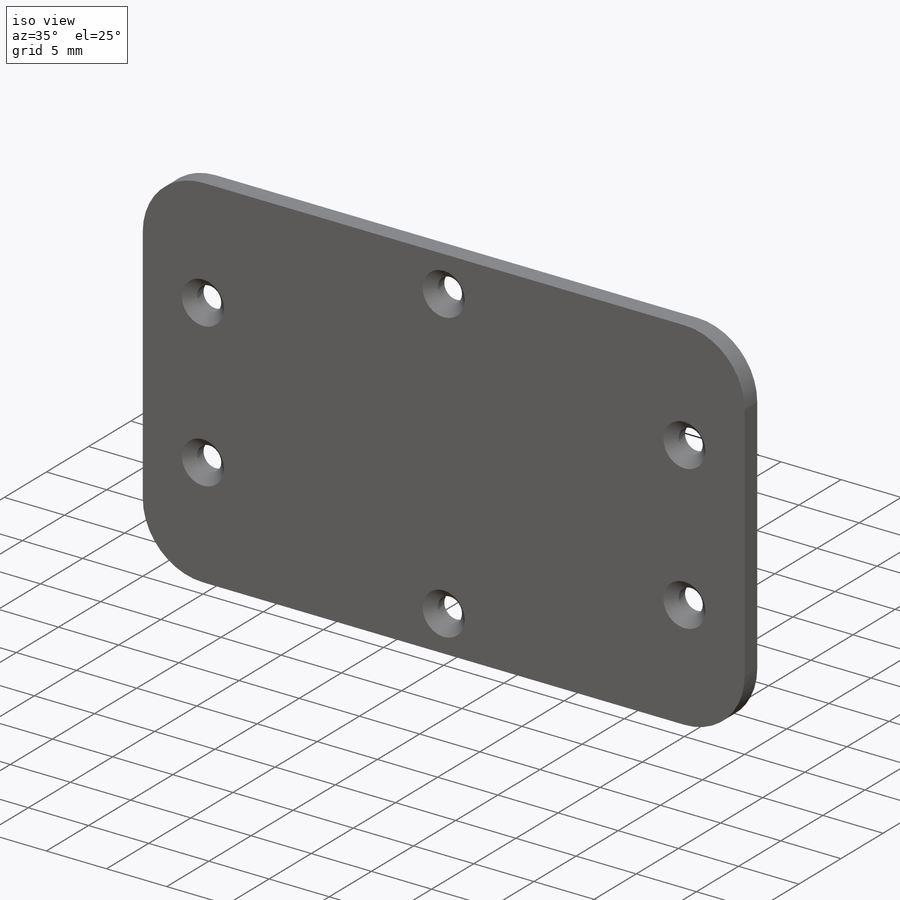
[diagram: iso view]
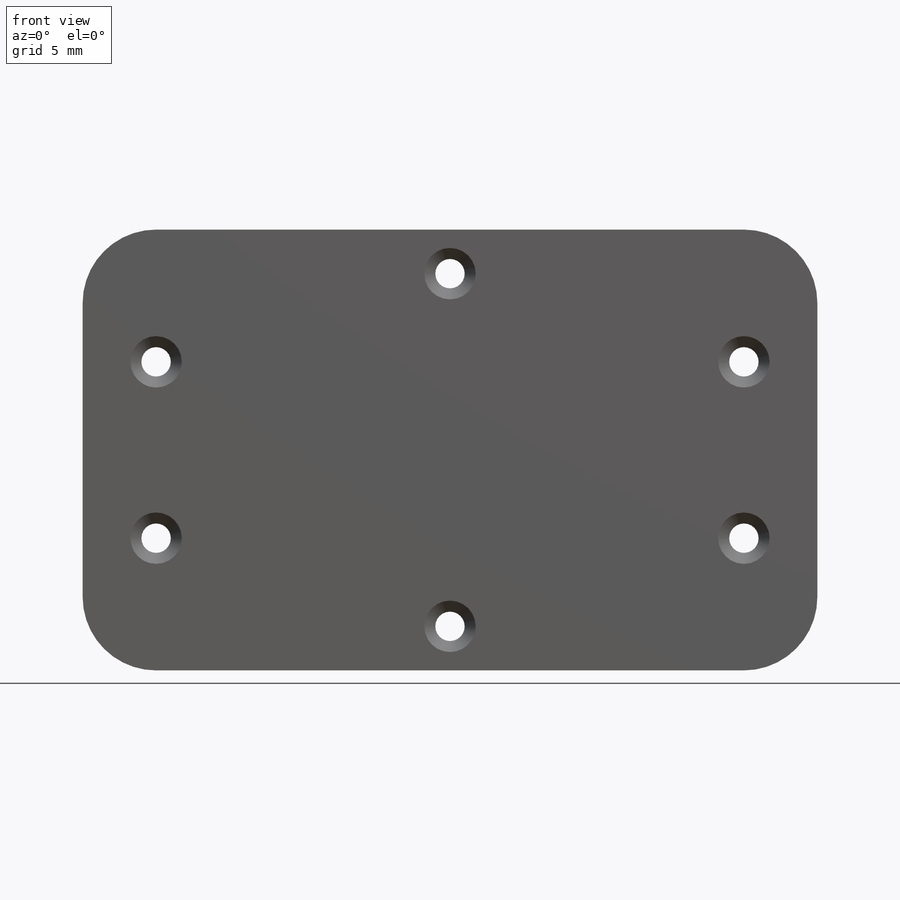
[diagram: front view]
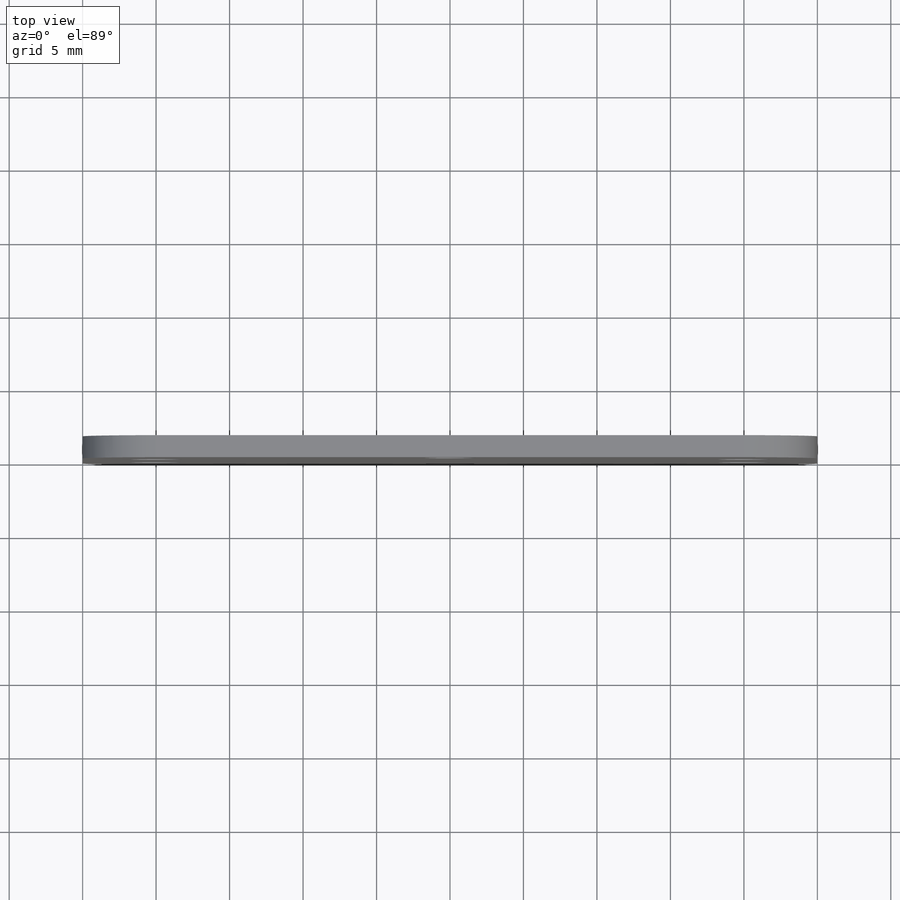
[diagram: top view]
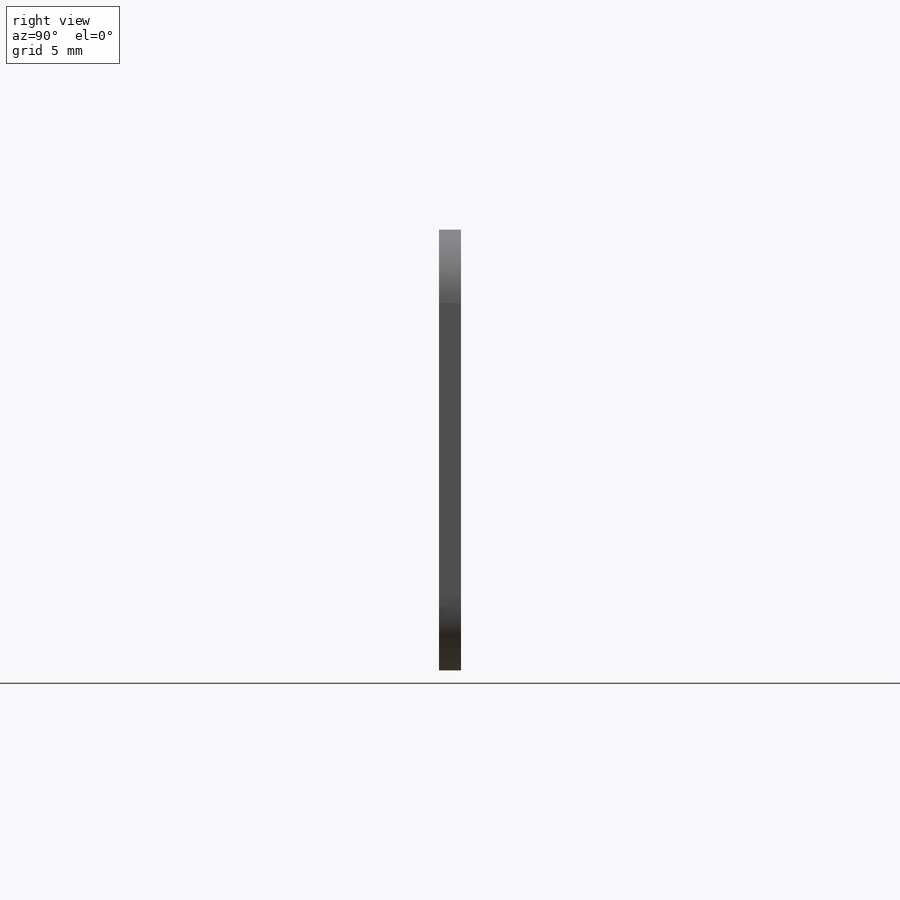
[diagram: right view]
SOLIDWORKS PART (.sldprt)
format: sldprt  version: not decoded by parser v0  size: 259,072 bytes
history: native  units: mm
features: sketch x12, sheet_metal_op x4, plane x3, material x1, fillet x1, hole x1, cut_extrude x1 + 3 further entries (+9 scaffold rows collapsed; 3 parser-record rows omitted)
feature tree (38):
  scaffold x9  (default folders/planes/origin — collapsed)
  material  "Material <nicht festgelegt>"
  plane  "Ebene vorne"
  plane  "Ebene oben"
  plane  "Ebene rechts"
  sketch  "Skizze1"  dims[c1.D1=30.0mm c1.D2=50.0mm c2.D1=2.5mm c2.D2=0.5 c2.D3=0.0mm c2.D6=500.0mm]
  sheet_metal_op  "Basis-Blech1"
  fillet  "Verrundung1"  Radius=5mm
  hole  "Formsenkung für M3 Senkschraube mit Innensechskant2"  Diameter=1.6mm Depth=8mm
  sketch  "Skizze9"  dims[D1=12.0mm D2=24.0mm D3=40.0mm]
  sketch  "Skizze10"  dims[Bohrerdurchmesser=1.6mm Bohrungstiefe=8.0mm Senkdurchmesser (Oben)=3.5mm Senkwinkel (Oben)=90.0deg Spitzenwinkel=118.0deg]
  sketch  "Skizze8"  dims[D1=2.0mm]
  cut_extrude  "Schnitt-Linear austragen1"  [1 undecoded]
  sketch  "Biegung-Linien1"
  sketch  "Rahmen1"
  sheet_metal_op  "Blech(1)"
  "Abwicklung(1)"
  sketch  "Biegung-Linien2"
  sketch  "Rahmen2"
  parser-record x3  (decoder bookkeeping rows leaked as tree rows — omitted from the tree; the rows remain in map.json)
  sheet_metal_op  "Blech(3)"
  "Abwicklung(1)"
  sketch  "Biegung-Linien2"
  sketch  "Rahmen2"
  sheet_metal_op  "Blech(4)"
  "Abwicklung(1)"
  sketch  "Biegung-Linien2"
  sketch  "Rahmen2"
decode coverage: 6 of 19 modeling features carry decoded parameters; 3 rows unclassified (native names shown)
note: 1 parameter value undecoded
note: suppression state not decoded; provenance and decode notes live in map.json
